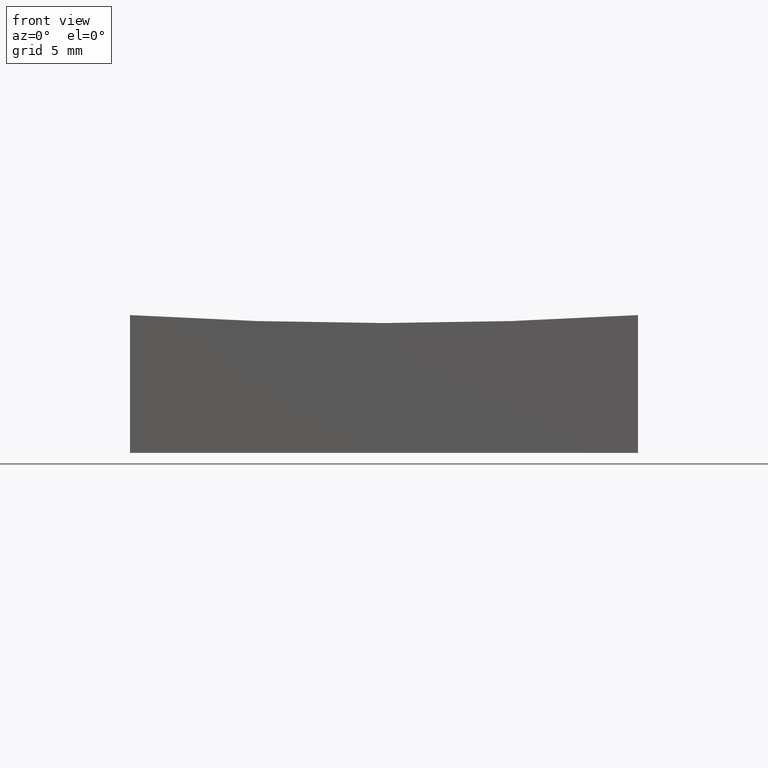
[diagram: clean part render]
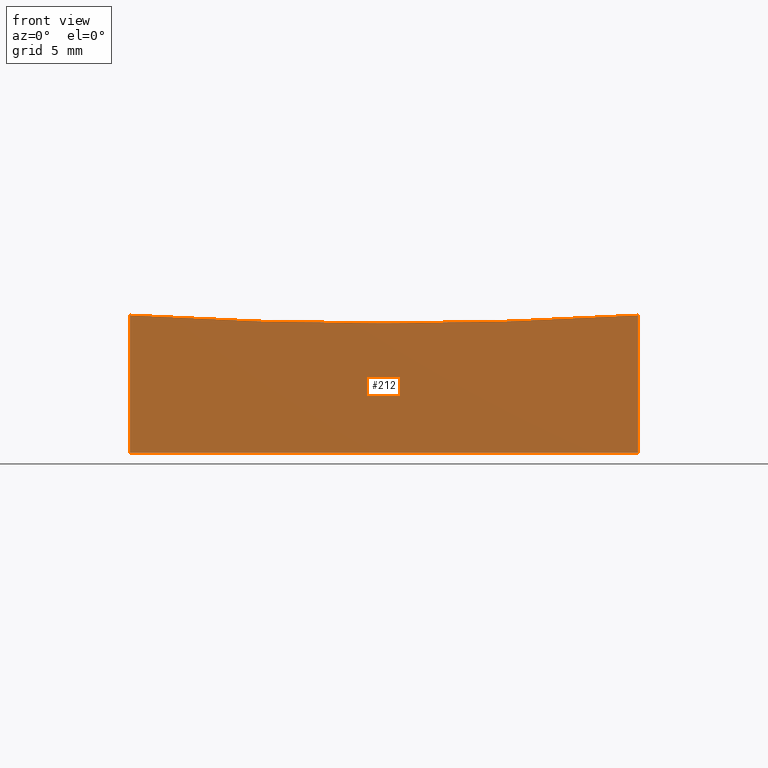
[diagram: same view with one face highlighted and labeled with its STEP entity id]
A machine part, front view. The second image highlights one B-rep face of the part: STEP entity #212.
In plain terms, the highlighted planar face has unit normal (0, 1, 0).
Its self-contained STEP definition (entity closure, byte-faithful):
#1 = ORIENTED_EDGE ( 'NONE', *, *, #158, .F. ) ;
#2 = DIRECTION ( 'NONE',  ( -0.0000000000000000000, -0.0000000000000000000, -1.000000000000000000 ) ) ;
#17 = VECTOR ( 'NONE', #24, 1000.000000000000000 ) ;
#23 = CARTESIAN_POINT ( 'NONE',  ( 12.50000000000000355, -12.50000000000000000, 20.00000000000000000 ) ) ;
#24 = DIRECTION ( 'NONE',  ( -0.0000000000000000000, -0.0000000000000000000, -1.000000000000000000 ) ) ;
#26 = CARTESIAN_POINT ( 'NONE',  ( 12.50000000000000355, -12.50000000000000000, 6.782781868634652156 ) ) ;
#27 = CIRCLE ( 'NONE', #36, 199.6089927833914430 ) ;
#34 = DIRECTION ( 'NONE',  ( 0.0000000000000000000, 1.000000000000000000, 0.0000000000000000000 ) ) ;
#36 = AXIS2_PLACEMENT_3D ( 'NONE', #171, #73, #203 ) ;
#38 = EDGE_CURVE ( 'NONE', #172, #84, #178, .T. ) ;
#46 = LINE ( 'NONE', #23, #93 ) ;
#49 = CARTESIAN_POINT ( 'NONE',  ( 12.50000000000000355, -12.50000000000000000, 0.0000000000000000000 ) ) ;
#53 = ORIENTED_EDGE ( 'NONE', *, *, #246, .T. ) ;
#59 = ORIENTED_EDGE ( 'NONE', *, *, #66, .T. ) ;
#66 = EDGE_CURVE ( 'NONE', #84, #242, #238, .T. ) ;
#67 = PLANE ( 'NONE',  #126 ) ;
#73 = DIRECTION ( 'NONE',  ( 0.0000000000000000000, 1.000000000000000000, 0.0000000000000000000 ) ) ;
#83 = CARTESIAN_POINT ( 'NONE',  ( -12.49999999999999645, -12.50000000000000000, 6.782781868634652156 ) ) ;
#84 = VERTEX_POINT ( 'NONE', #104 ) ;
#93 = VECTOR ( 'NONE', #2, 1000.000000000000000 ) ;
#95 = VERTEX_POINT ( 'NONE', #26 ) ;
#104 = CARTESIAN_POINT ( 'NONE',  ( -12.49999999999999645, -12.50000000000000000, 0.0000000000000000000 ) ) ;
#126 = AXIS2_PLACEMENT_3D ( 'NONE', #245, #34, #226 ) ;
#135 = EDGE_LOOP ( 'NONE', ( #1, #53, #154, #59 ) ) ;
#144 = CARTESIAN_POINT ( 'NONE',  ( -12.49999999999999645, -12.50000000000000000, 20.00000000000000000 ) ) ;
#154 = ORIENTED_EDGE ( 'NONE', *, *, #38, .T. ) ;
#158 = EDGE_CURVE ( 'NONE', #95, #242, #46, .T. ) ;
#169 = FACE_OUTER_BOUND ( 'NONE', #135, .T. ) ;
#171 = CARTESIAN_POINT ( 'NONE',  ( 2.522772406243548785E-14, -12.50000000000000000, 206.0000000000000284 ) ) ;
#172 = VERTEX_POINT ( 'NONE', #83 ) ;
#178 = LINE ( 'NONE', #144, #17 ) ;
#198 = DIRECTION ( 'NONE',  ( 1.000000000000000000, 0.0000000000000000000, 0.0000000000000000000 ) ) ;
#203 = DIRECTION ( 'NONE',  ( 0.0000000000000000000, 0.0000000000000000000, 1.000000000000000000 ) ) ;
#210 = VECTOR ( 'NONE', #198, 1000.000000000000000 ) ;
#212 = ADVANCED_FACE ( 'NONE', ( #169 ), #67, .F. ) ;
#215 = CARTESIAN_POINT ( 'NONE',  ( -12.49999999999999645, -12.50000000000000000, 0.0000000000000000000 ) ) ;
#226 = DIRECTION ( 'NONE',  ( 0.0000000000000000000, -0.0000000000000000000, 1.000000000000000000 ) ) ;
#238 = LINE ( 'NONE', #215, #210 ) ;
#242 = VERTEX_POINT ( 'NONE', #49 ) ;
#245 = CARTESIAN_POINT ( 'NONE',  ( -12.49999999999999645, -12.50000000000000000, 20.00000000000000000 ) ) ;
#246 = EDGE_CURVE ( 'NONE', #95, #172, #27, .T. ) ;